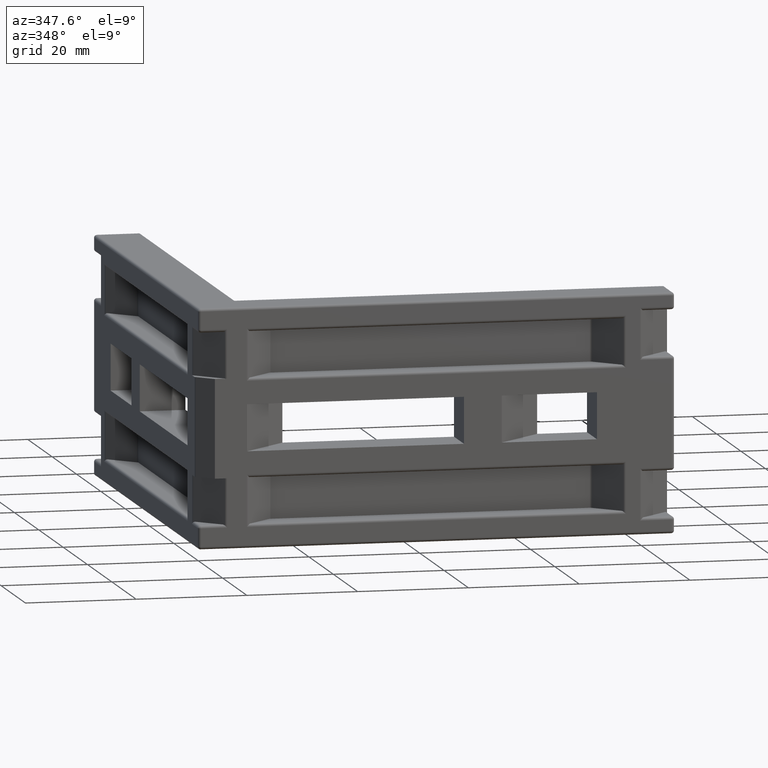
[diagram: clean part render]
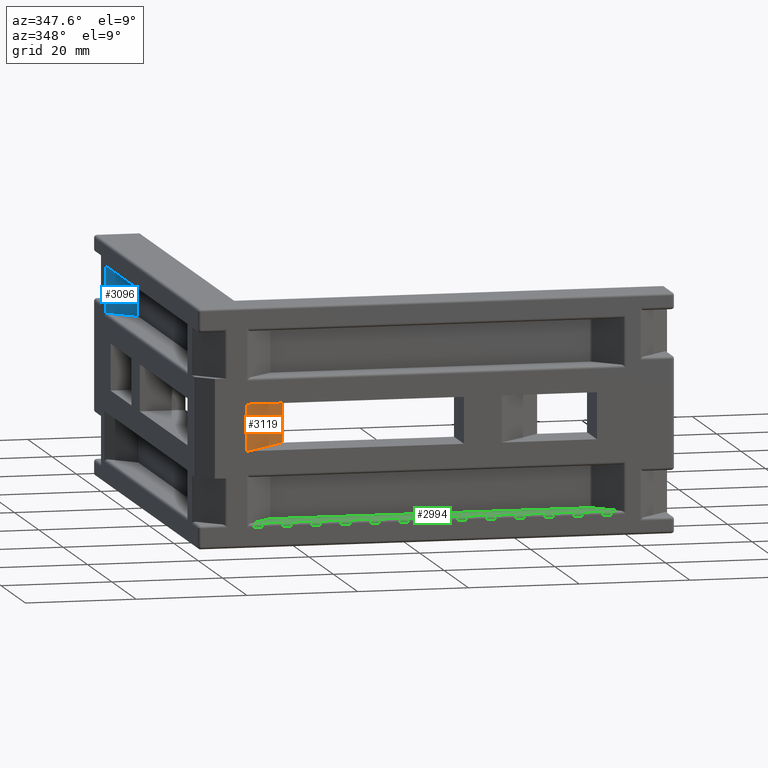
[diagram: same view with three faces highlighted in distinct colors, each labeled with its STEP entity id]
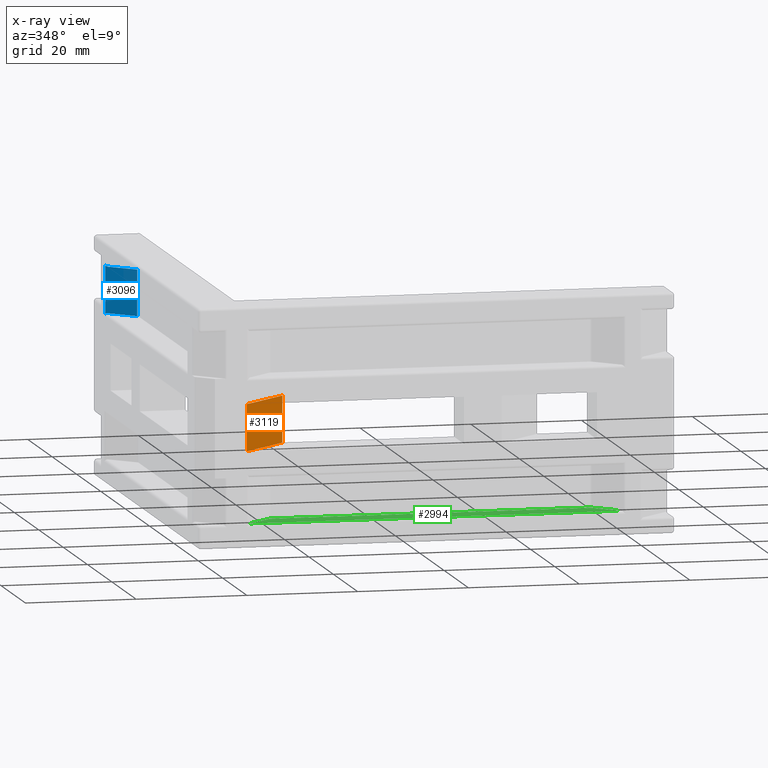
[diagram: x-ray of the same camera — body ghosted, the three highlighted faces saturated]
A machine part, auxiliary view with three faces highlighted in distinct colors.
The next image is the same camera in x-ray (body ghosted, the three faces saturated) — at least one of them is partly hidden behind the body in this view.
Their STEP definitions:

[orange] entity #3119 — the highlighted planar face has unit normal (-0.7071, 0.7071, 0).
#196=PLANE('',#3486);
#375=FACE_OUTER_BOUND('',#568,.T.);
#568=EDGE_LOOP('',(#2844,#2845,#2846,#2847));
#710=LINE('',#4860,#993);
#833=LINE('',#5333,#1116);
#850=LINE('',#5367,#1133);
#853=LINE('',#5372,#1136);
#993=VECTOR('',#3848,10.);
#1116=VECTOR('',#4413,10.);
#1133=VECTOR('',#4456,10.);
#1136=VECTOR('',#4463,10.);
#1370=VERTEX_POINT('',#4857);
#1371=VERTEX_POINT('',#4859);
#1497=VERTEX_POINT('',#5326);
#1500=VERTEX_POINT('',#5331);
#1700=EDGE_CURVE('',#1370,#1371,#710,.T.);
#1935=EDGE_CURVE('',#1500,#1497,#833,.T.);
#1952=EDGE_CURVE('',#1370,#1497,#850,.T.);
#1955=EDGE_CURVE('',#1500,#1371,#853,.T.);
#2844=ORIENTED_EDGE('',*,*,#1700,.F.);
#2845=ORIENTED_EDGE('',*,*,#1952,.T.);
#2846=ORIENTED_EDGE('',*,*,#1935,.F.);
#2847=ORIENTED_EDGE('',*,*,#1955,.T.);
#3119=ADVANCED_FACE('',(#375),#196,.F.);
#3486=AXIS2_PLACEMENT_3D('',#5371,#4461,#4462);
#3848=DIRECTION('',(0.,0.,1.));
#4413=DIRECTION('',(0.,0.,-1.));
#4456=DIRECTION('',(0.707106781186547,0.707106781186548,0.));
#4461=DIRECTION('center_axis',(-0.707106781186548,0.707106781186547,0.));
#4462=DIRECTION('ref_axis',(-0.707106781186547,-0.707106781186548,0.));
#4463=DIRECTION('',(-0.707106781186547,-0.707106781186548,0.));
#4857=CARTESIAN_POINT('',(8.79999999999997,1.11022302462516E-15,-4.2));
#4859=CARTESIAN_POINT('',(8.79999999999997,1.11022302462516E-15,4.2));
#4860=CARTESIAN_POINT('',(8.79999999999997,8.32667268468867E-16,0.));
#5326=CARTESIAN_POINT('',(17.,8.2,-4.2));
#5331=CARTESIAN_POINT('',(17.,8.2,4.2));
#5333=CARTESIAN_POINT('',(17.,8.2,-7.75));
#5367=CARTESIAN_POINT('',(8.79999999999997,1.11022302462516E-15,-4.2));
#5371=CARTESIAN_POINT('Origin',(17.,8.2,0.));
#5372=CARTESIAN_POINT('',(8.79999999999997,1.11022302462516E-15,4.2));

[blue] entity #3096 — the highlighted planar face has unit normal (0.7071, 0.7071, 0).
#37=ELLIPSE('',#3200,0.707106781186549,0.5);
#38=ELLIPSE('',#3202,0.707106781186549,0.5);
#173=PLANE('',#3463);
#352=FACE_OUTER_BOUND('',#543,.T.);
#543=EDGE_LOOP('',(#2734,#2735,#2736,#2737,#2738,#2739));
#596=LINE('',#4555,#879);
#600=LINE('',#4565,#883);
#615=LINE('',#4612,#898);
#620=LINE('',#4629,#903);
#879=VECTOR('',#3590,10.);
#883=VECTOR('',#3598,10.);
#898=VECTOR('',#3641,10.);
#903=VECTOR('',#3664,10.);
#1250=VERTEX_POINT('',#4549);
#1252=VERTEX_POINT('',#4553);
#1256=VERTEX_POINT('',#4563);
#1273=VERTEX_POINT('',#4609);
#1274=VERTEX_POINT('',#4611);
#1277=VERTEX_POINT('',#4625);
#1548=EDGE_CURVE('',#1252,#1250,#596,.T.);
#1553=EDGE_CURVE('',#1256,#1252,#600,.T.);
#1575=EDGE_CURVE('',#1273,#1274,#615,.T.);
#1581=EDGE_CURVE('',#1274,#1256,#37,.T.);
#1584=EDGE_CURVE('',#1277,#1273,#38,.T.);
#1585=EDGE_CURVE('',#1277,#1250,#620,.T.);
#2734=ORIENTED_EDGE('',*,*,#1548,.F.);
#2735=ORIENTED_EDGE('',*,*,#1553,.F.);
#2736=ORIENTED_EDGE('',*,*,#1581,.F.);
#2737=ORIENTED_EDGE('',*,*,#1575,.F.);
#2738=ORIENTED_EDGE('',*,*,#1584,.F.);
#2739=ORIENTED_EDGE('',*,*,#1585,.T.);
#3096=ADVANCED_FACE('',(#352),#173,.F.);
#3200=AXIS2_PLACEMENT_3D('',#4622,#3654,#3655);
#3202=AXIS2_PLACEMENT_3D('',#4627,#3660,#3661);
#3463=AXIS2_PLACEMENT_3D('',#5313,#4388,#4389);
#3590=DIRECTION('',(0.,0.,-1.));
#3598=DIRECTION('',(0.707106781186546,-0.707106781186549,0.));
#3641=DIRECTION('',(0.,0.,1.));
#3654=DIRECTION('center_axis',(-0.707106781186549,-0.707106781186546,0.));
#3655=DIRECTION('ref_axis',(-0.707106781186546,0.707106781186549,-4.90653893338679E-17));
#3660=DIRECTION('center_axis',(-0.707106781186549,-0.707106781186546,0.));
#3661=DIRECTION('ref_axis',(-0.707106781186546,0.707106781186549,-4.90653893338679E-17));
#3664=DIRECTION('',(0.707106781186546,-0.707106781186549,0.));
#4388=DIRECTION('center_axis',(0.707106781186549,0.707106781186546,0.));
#4389=DIRECTION('ref_axis',(0.707106781186546,-0.707106781186549,0.));
#4549=CARTESIAN_POINT('',(4.85355339059329,72.1464466094067,8.9));
#4553=CARTESIAN_POINT('',(4.85355339059329,72.1464466094067,17.2));
#4555=CARTESIAN_POINT('',(4.85355339059329,72.1464466094067,17.2));
#4563=CARTESIAN_POINT('',(0.5,76.5,17.2));
#4565=CARTESIAN_POINT('',(0.,77.,17.2));
#4609=CARTESIAN_POINT('',(0.146446609406725,76.8535533905933,8.75355339059327));
#4611=CARTESIAN_POINT('',(0.146446609406725,76.8535533905933,17.3464466094067));
#4612=CARTESIAN_POINT('',(0.146446609406725,76.8535533905933,8.6));
#4622=CARTESIAN_POINT('Origin',(0.5,76.5,17.7));
#4625=CARTESIAN_POINT('',(0.5,76.5,8.9));
#4627=CARTESIAN_POINT('Origin',(0.5,76.5,8.4));
#4629=CARTESIAN_POINT('',(0.,77.,8.9));
#5313=CARTESIAN_POINT('Origin',(0.,77.,17.2));

[green] entity #2994 — the highlighted planar face has unit normal (0, 0, 1).
#145=PLANE('',#3249);
#250=FACE_OUTER_BOUND('',#435,.T.);
#435=EDGE_LOOP('',(#2223,#2224,#2225,#2226,#2227,#2228));
#671=LINE('',#4765,#954);
#674=LINE('',#4773,#957);
#681=LINE('',#4800,#964);
#682=LINE('',#4803,#965);
#954=VECTOR('',#3775,10.);
#957=VECTOR('',#3784,10.);
#964=VECTOR('',#3813,10.);
#965=VECTOR('',#3818,10.);
#1166=CIRCLE('',#3230,0.5);
#1168=CIRCLE('',#3235,0.5);
#1326=VERTEX_POINT('',#4748);
#1327=VERTEX_POINT('',#4750);
#1332=VERTEX_POINT('',#4764);
#1333=VERTEX_POINT('',#4768);
#1334=VERTEX_POINT('',#4772);
#1343=VERTEX_POINT('',#4799);
#1645=EDGE_CURVE('',#1327,#1326,#1166,.T.);
#1652=EDGE_CURVE('',#1327,#1332,#671,.T.);
#1654=EDGE_CURVE('',#1333,#1332,#1168,.T.);
#1656=EDGE_CURVE('',#1333,#1334,#674,.T.);
#1670=EDGE_CURVE('',#1334,#1343,#681,.T.);
#1672=EDGE_CURVE('',#1343,#1326,#682,.T.);
#2223=ORIENTED_EDGE('',*,*,#1645,.T.);
#2224=ORIENTED_EDGE('',*,*,#1672,.F.);
#2225=ORIENTED_EDGE('',*,*,#1670,.F.);
#2226=ORIENTED_EDGE('',*,*,#1656,.F.);
#2227=ORIENTED_EDGE('',*,*,#1654,.T.);
#2228=ORIENTED_EDGE('',*,*,#1652,.F.);
#2994=ADVANCED_FACE('',(#250),#145,.T.);
#3230=AXIS2_PLACEMENT_3D('',#4751,#3762,#3763);
#3235=AXIS2_PLACEMENT_3D('',#4769,#3779,#3780);
#3249=AXIS2_PLACEMENT_3D('',#4802,#3816,#3817);
#3762=DIRECTION('center_axis',(0.,0.,1.));
#3763=DIRECTION('ref_axis',(-0.382683432365089,0.923879532511287,0.));
#3775=DIRECTION('',(1.,0.,0.));
#3779=DIRECTION('center_axis',(0.,0.,1.));
#3780=DIRECTION('ref_axis',(0.382683432365091,0.923879532511286,0.));
#3784=DIRECTION('',(0.707106781186549,-0.707106781186546,0.));
#3813=DIRECTION('',(-1.,-5.16382802151236E-17,0.));
#3816=DIRECTION('center_axis',(0.,0.,1.));
#3817=DIRECTION('ref_axis',(1.,0.,0.));
#3818=DIRECTION('',(0.707106781186549,0.707106781186546,0.));
#4748=CARTESIAN_POINT('',(13.8535533905933,4.85355339059328,-17.2));
#4750=CARTESIAN_POINT('',(14.2071067811866,5.,-17.2));
#4751=CARTESIAN_POINT('Origin',(14.2071067811866,4.5,-17.2));
#4764=CARTESIAN_POINT('',(71.7928932188135,5.,-17.2));
#4765=CARTESIAN_POINT('',(14.,5.,-17.2));
#4768=CARTESIAN_POINT('',(72.1464466094068,4.85355339059327,-17.2));
#4769=CARTESIAN_POINT('Origin',(71.7928932188135,4.5,-17.2));
#4772=CARTESIAN_POINT('',(76.5,0.500000000000004,-17.2));
#4773=CARTESIAN_POINT('',(72.,5.,-17.2));
#4799=CARTESIAN_POINT('',(9.49999999999999,0.500000000000001,-17.2));
#4800=CARTESIAN_POINT('',(21.5,0.500000000000001,-17.2));
#4802=CARTESIAN_POINT('Origin',(43.,2.32160968299268,-17.2));
#4803=CARTESIAN_POINT('',(8.99999999999999,0.,-17.2));